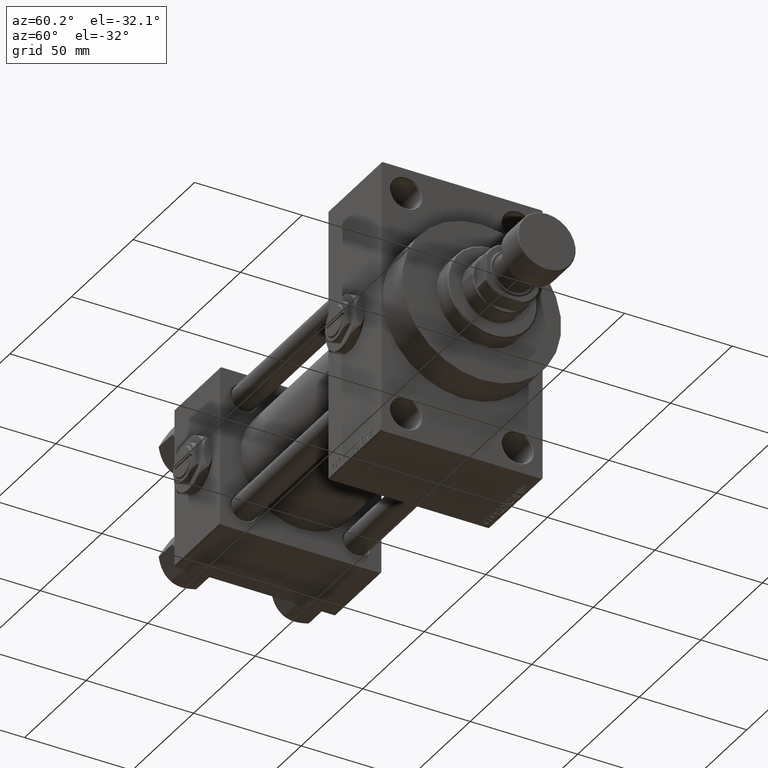
[diagram: clean part render]
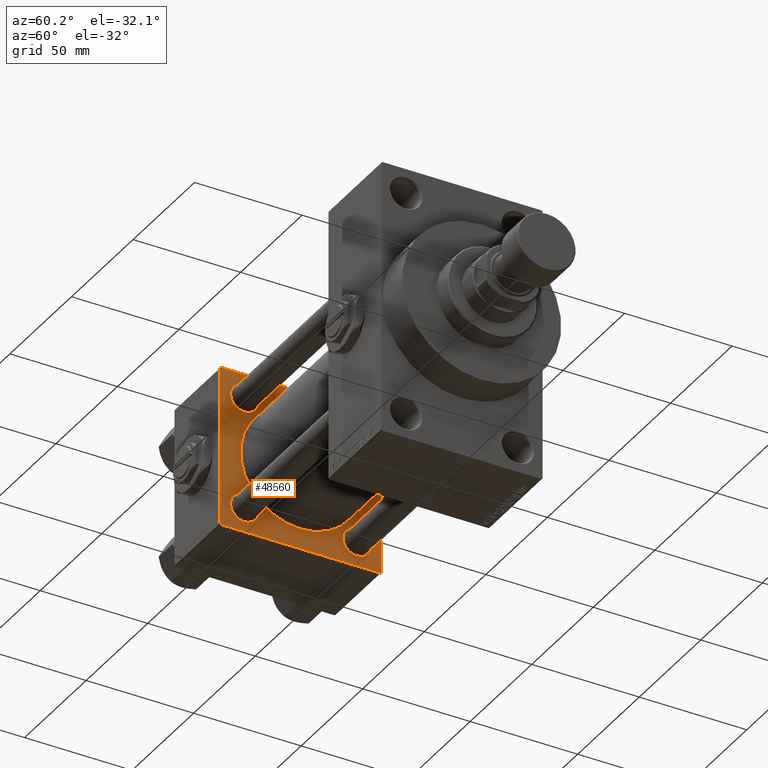
[diagram: same view with one face highlighted and labeled with its STEP entity id]
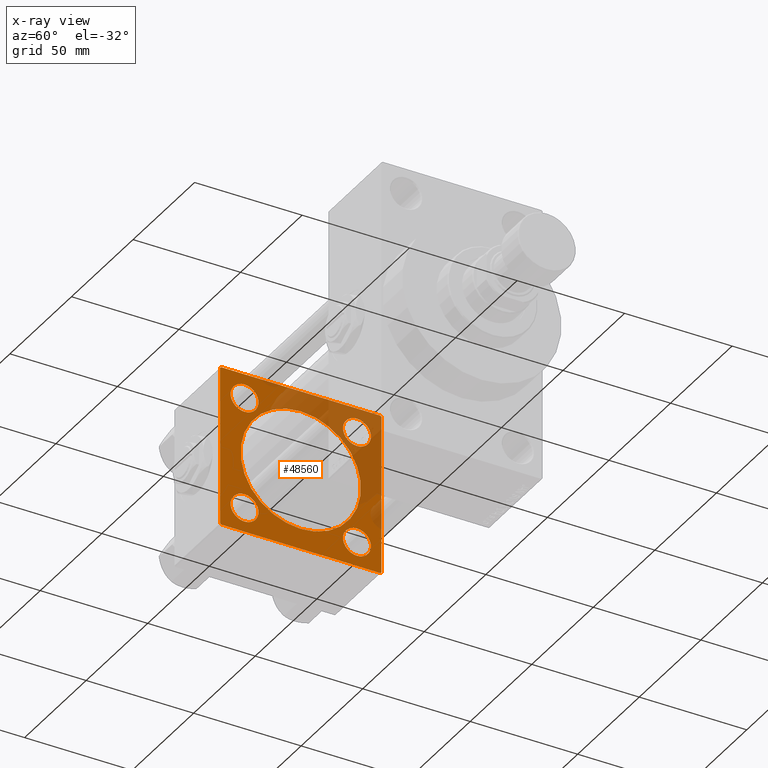
[diagram: x-ray of the same camera — body ghosted, the highlighted face saturated]
A machine part, auxiliary view. The second image highlights one B-rep face of the part: STEP entity #48560.
The next image is the same camera in x-ray: the body ghosted, the highlighted face saturated — about 33% of this face is hidden behind the body in this view.
In plain terms, the highlighted planar face has unit normal (-1, 0, 0).
Its self-contained STEP definition (entity closure, byte-faithful):
#48 = EDGE_CURVE ( 'NONE', #15306, #7305, #49686, .T. ) ;
#373 = CARTESIAN_POINT ( 'NONE',  ( 37.00000000000000711, 8.269258236473784371E-16, -28.00000000000000000 ) ) ;
#453 = EDGE_CURVE ( 'NONE', #25900, #24039, #15159, .T. ) ;
#1038 = CARTESIAN_POINT ( 'NONE',  ( 37.00000000000000000, -26.14999999999999147, -26.15000000000000924 ) ) ;
#2096 = DIRECTION ( 'NONE',  ( -1.000000000000000000, 0.000000000000000000, -0.000000000000000000 ) ) ;
#2340 = CARTESIAN_POINT ( 'NONE',  ( 37.00000000000000711, -2.602085213965210642E-15, 0.000000000000000000 ) ) ;
#2387 = ORIENTED_EDGE ( 'NONE', *, *, #22238, .T. ) ;
#2572 = DIRECTION ( 'NONE',  ( 0.000000000000000000, -1.000000000000000000, -9.251858538542971581E-17 ) ) ;
#2836 = LINE ( 'NONE', #18421, #5097 ) ;
#2849 = DIRECTION ( 'NONE',  ( 1.000000000000000000, -0.000000000000000000, 0.000000000000000000 ) ) ;
#2964 = DIRECTION ( 'NONE',  ( 0.000000000000000000, 0.000000000000000000, 1.000000000000000000 ) ) ;
#3082 = AXIS2_PLACEMENT_3D ( 'NONE', #2340, #2849, #29782 ) ;
#3333 = VECTOR ( 'NONE', #27521, 1000.000000000000114 ) ;
#4319 = CARTESIAN_POINT ( 'NONE',  ( 37.00000000000000000, 26.14999999999999858, -26.15000000000000213 ) ) ;
#4396 = EDGE_CURVE ( 'NONE', #24281, #28866, #39285, .T. ) ;
#5061 = DIRECTION ( 'NONE',  ( 0.000000000000000000, 9.251858538542971581E-17, -1.000000000000000000 ) ) ;
#5097 = VECTOR ( 'NONE', #18176, 1000.000000000000000 ) ;
#5340 = LINE ( 'NONE', #39810, #9867 ) ;
#6902 = VERTEX_POINT ( 'NONE', #11752 ) ;
#7305 = VERTEX_POINT ( 'NONE', #39599 ) ;
#7611 = ORIENTED_EDGE ( 'NONE', *, *, #13029, .F. ) ;
#7703 = EDGE_CURVE ( 'NONE', #34662, #24351, #37774, .T. ) ;
#8498 = AXIS2_PLACEMENT_3D ( 'NONE', #41335, #2096, #17441 ) ;
#8666 = ORIENTED_EDGE ( 'NONE', *, *, #7703, .T. ) ;
#8700 = EDGE_CURVE ( 'NONE', #20296, #21068, #42612, .T. ) ;
#9160 = ORIENTED_EDGE ( 'NONE', *, *, #30769, .T. ) ;
#9722 = ORIENTED_EDGE ( 'NONE', *, *, #10948, .T. ) ;
#9867 = VECTOR ( 'NONE', #25222, 1000.000000000000114 ) ;
#10307 = ORIENTED_EDGE ( 'NONE', *, *, #8700, .T. ) ;
#10717 = AXIS2_PLACEMENT_3D ( 'NONE', #38290, #19662, #31492 ) ;
#10948 = EDGE_CURVE ( 'NONE', #41208, #11150, #46881, .T. ) ;
#11150 = VERTEX_POINT ( 'NONE', #25738 ) ;
#11156 = FACE_OUTER_BOUND ( 'NONE', #48885, .T. ) ;
#11752 = CARTESIAN_POINT ( 'NONE',  ( 37.00000000000000000, -26.14999999999999147, 32.64999999999999147 ) ) ;
#11782 = ORIENTED_EDGE ( 'NONE', *, *, #40024, .F. ) ;
#12569 = ORIENTED_EDGE ( 'NONE', *, *, #22767, .T. ) ;
#12897 = AXIS2_PLACEMENT_3D ( 'NONE', #17637, #21663, #13862 ) ;
#13015 = VECTOR ( 'NONE', #2572, 1000.000000000000000 ) ;
#13029 = EDGE_CURVE ( 'NONE', #16529, #37383, #31271, .T. ) ;
#13154 = EDGE_CURVE ( 'NONE', #16529, #22715, #5340, .T. ) ;
#13699 = AXIS2_PLACEMENT_3D ( 'NONE', #1038, #27727, #16391 ) ;
#13862 = DIRECTION ( 'NONE',  ( 0.000000000000000000, 0.000000000000000000, 1.000000000000000000 ) ) ;
#14045 = CIRCLE ( 'NONE', #20470, 28.00000000000000000 ) ;
#14147 = CIRCLE ( 'NONE', #8498, 6.500000000000037303 ) ;
#14819 = CIRCLE ( 'NONE', #41362, 6.499999999999974243 ) ;
#15159 = CIRCLE ( 'NONE', #3082, 28.00000000000000000 ) ;
#15306 = VERTEX_POINT ( 'NONE', #37838 ) ;
#15559 = EDGE_CURVE ( 'NONE', #28866, #41208, #40561, .T. ) ;
#15673 = FACE_BOUND ( 'NONE', #27689, .T. ) ;
#16136 = CARTESIAN_POINT ( 'NONE',  ( 37.00000000000000000, 36.99999999999999289, 37.50000000000000000 ) ) ;
#16147 = DIRECTION ( 'NONE',  ( 0.000000000000000000, 0.000000000000000000, 1.000000000000000000 ) ) ;
#16391 = DIRECTION ( 'NONE',  ( 0.000000000000000000, 0.000000000000000000, 1.000000000000000000 ) ) ;
#16529 = VERTEX_POINT ( 'NONE', #42757 ) ;
#17300 = CARTESIAN_POINT ( 'NONE',  ( 37.00000000000000000, -37.50000000000000000, -37.00000000000003553 ) ) ;
#17441 = DIRECTION ( 'NONE',  ( 0.000000000000000000, 0.000000000000000000, 1.000000000000000000 ) ) ;
#17637 = CARTESIAN_POINT ( 'NONE',  ( 37.00000000000000000, -26.14999999999999147, 26.15000000000000924 ) ) ;
#17948 = CARTESIAN_POINT ( 'NONE',  ( 37.00000000000000000, 37.49999999999999289, 37.00000000000000000 ) ) ;
#18176 = DIRECTION ( 'NONE',  ( 0.000000000000000000, 0.000000000000000000, -1.000000000000000000 ) ) ;
#18421 = CARTESIAN_POINT ( 'NONE',  ( 37.00000000000000000, 37.49999999999999289, 37.50000000000000000 ) ) ;
#19447 = DIRECTION ( 'NONE',  ( -1.000000000000000000, 0.000000000000000000, -0.000000000000000000 ) ) ;
#19467 = CARTESIAN_POINT ( 'NONE',  ( 37.00000000000000000, 26.14999999999999858, 26.15000000000000213 ) ) ;
#19539 = CIRCLE ( 'NONE', #10717, 6.499999999999981348 ) ;
#19662 = DIRECTION ( 'NONE',  ( -1.000000000000000000, 0.000000000000000000, -0.000000000000000000 ) ) ;
#19933 = FACE_BOUND ( 'NONE', #21716, .T. ) ;
#20273 = VECTOR ( 'NONE', #31777, 1000.000000000000000 ) ;
#20296 = VERTEX_POINT ( 'NONE', #43833 ) ;
#20470 = AXIS2_PLACEMENT_3D ( 'NONE', #34090, #38103, #45641 ) ;
#20859 = LINE ( 'NONE', #36223, #33632 ) ;
#21068 = VERTEX_POINT ( 'NONE', #39083 ) ;
#21405 = ORIENTED_EDGE ( 'NONE', *, *, #48, .T. ) ;
#21663 = DIRECTION ( 'NONE',  ( -1.000000000000000000, 0.000000000000000000, -0.000000000000000000 ) ) ;
#21716 = EDGE_LOOP ( 'NONE', ( #24166, #41477 ) ) ;
#22117 = EDGE_LOOP ( 'NONE', ( #30238, #9160 ) ) ;
#22238 = EDGE_CURVE ( 'NONE', #7305, #15306, #25324, .T. ) ;
#22258 = ORIENTED_EDGE ( 'NONE', *, *, #46468, .T. ) ;
#22575 = CARTESIAN_POINT ( 'NONE',  ( 37.00000000000000000, 26.14999999999999858, 19.64999999999997016 ) ) ;
#22586 = CARTESIAN_POINT ( 'NONE',  ( 37.00000000000000000, -26.14999999999999147, -26.15000000000000924 ) ) ;
#22715 = VERTEX_POINT ( 'NONE', #25624 ) ;
#22767 = EDGE_CURVE ( 'NONE', #21068, #20296, #14819, .T. ) ;
#23481 = CARTESIAN_POINT ( 'NONE',  ( 37.00000000000000000, 37.49999999999999289, -37.50000000000000000 ) ) ;
#23502 = CARTESIAN_POINT ( 'NONE',  ( 37.00000000000000000, -37.50000000000000711, 36.99999999999999289 ) ) ;
#23839 = ORIENTED_EDGE ( 'NONE', *, *, #15559, .T. ) ;
#23988 = DIRECTION ( 'NONE',  ( -1.000000000000000000, 0.000000000000000000, -0.000000000000000000 ) ) ;
#24039 = VERTEX_POINT ( 'NONE', #373 ) ;
#24166 = ORIENTED_EDGE ( 'NONE', *, *, #453, .F. ) ;
#24281 = VERTEX_POINT ( 'NONE', #17948 ) ;
#24351 = VERTEX_POINT ( 'NONE', #36733 ) ;
#24492 = ORIENTED_EDGE ( 'NONE', *, *, #40243, .T. ) ;
#24888 = ORIENTED_EDGE ( 'NONE', *, *, #4396, .T. ) ;
#25222 = DIRECTION ( 'NONE',  ( -0.000000000000000000, 0.7071067811865474617, 0.7071067811865474617 ) ) ;
#25324 = CIRCLE ( 'NONE', #31743, 6.500000000000030198 ) ;
#25624 = CARTESIAN_POINT ( 'NONE',  ( 37.00000000000000000, 37.49999999999999289, -36.99999999999998579 ) ) ;
#25738 = CARTESIAN_POINT ( 'NONE',  ( 37.00000000000000000, -37.50000000000000711, 36.99999999999999289 ) ) ;
#25900 = VERTEX_POINT ( 'NONE', #47124 ) ;
#26122 = VERTEX_POINT ( 'NONE', #17300 ) ;
#26761 = DIRECTION ( 'NONE',  ( -0.000000000000000000, 0.000000000000000000, 1.000000000000000000 ) ) ;
#26836 = VECTOR ( 'NONE', #5061, 1000.000000000000000 ) ;
#27521 = DIRECTION ( 'NONE',  ( -0.000000000000000000, -0.7071067811865474617, -0.7071067811865474617 ) ) ;
#27689 = EDGE_LOOP ( 'NONE', ( #12569, #10307 ) ) ;
#27727 = DIRECTION ( 'NONE',  ( -1.000000000000000000, 0.000000000000000000, -0.000000000000000000 ) ) ;
#28231 = CARTESIAN_POINT ( 'NONE',  ( 37.00000000000000000, 36.99999999999999289, 37.50000000000000000 ) ) ;
#28866 = VERTEX_POINT ( 'NONE', #16136 ) ;
#29283 = CARTESIAN_POINT ( 'NONE',  ( 37.00000000000000000, -26.14999999999999147, 19.65000000000002700 ) ) ;
#29782 = DIRECTION ( 'NONE',  ( 0.000000000000000000, 0.000000000000000000, 1.000000000000000000 ) ) ;
#30238 = ORIENTED_EDGE ( 'NONE', *, *, #36123, .T. ) ;
#30423 = ORIENTED_EDGE ( 'NONE', *, *, #48948, .T. ) ;
#30696 = EDGE_LOOP ( 'NONE', ( #8666, #22258 ) ) ;
#30769 = EDGE_CURVE ( 'NONE', #6902, #37292, #49062, .T. ) ;
#31157 = CARTESIAN_POINT ( 'NONE',  ( 37.00000000000000000, -37.00000000000000711, 37.49999999999999289 ) ) ;
#31271 = LINE ( 'NONE', #23481, #20273 ) ;
#31492 = DIRECTION ( 'NONE',  ( 0.000000000000000000, 0.000000000000000000, 1.000000000000000000 ) ) ;
#31743 = AXIS2_PLACEMENT_3D ( 'NONE', #4319, #39036, #16147 ) ;
#31777 = DIRECTION ( 'NONE',  ( 0.000000000000000000, -1.000000000000000000, -9.251858538542972814E-17 ) ) ;
#32495 = LINE ( 'NONE', #40513, #26836 ) ;
#32621 = CARTESIAN_POINT ( 'NONE',  ( 37.00000000000000000, 26.14999999999999858, -26.15000000000000213 ) ) ;
#32689 = AXIS2_PLACEMENT_3D ( 'NONE', #39061, #19447, #26761 ) ;
#33632 = VECTOR ( 'NONE', #43017, 1000.000000000000000 ) ;
#34090 = CARTESIAN_POINT ( 'NONE',  ( 37.00000000000000711, -2.602085213965210642E-15, 0.000000000000000000 ) ) ;
#34662 = VERTEX_POINT ( 'NONE', #22575 ) ;
#36123 = EDGE_CURVE ( 'NONE', #37292, #6902, #19539, .T. ) ;
#36223 = CARTESIAN_POINT ( 'NONE',  ( 37.00000000000000000, -37.00000000000002132, -37.50000000000000711 ) ) ;
#36733 = CARTESIAN_POINT ( 'NONE',  ( 37.00000000000000000, 26.14999999999999858, 32.65000000000004121 ) ) ;
#37042 = CARTESIAN_POINT ( 'NONE',  ( 37.00000000000000000, 37.49999999999999289, 37.50000000000000000 ) ) ;
#37292 = VERTEX_POINT ( 'NONE', #29283 ) ;
#37383 = VERTEX_POINT ( 'NONE', #46773 ) ;
#37441 = DIRECTION ( 'NONE',  ( -1.000000000000000000, 0.000000000000000000, -0.000000000000000000 ) ) ;
#37774 = CIRCLE ( 'NONE', #38558, 6.500000000000037303 ) ;
#37838 = CARTESIAN_POINT ( 'NONE',  ( 37.00000000000000000, 26.14999999999999858, -19.64999999999997371 ) ) ;
#38103 = DIRECTION ( 'NONE',  ( 1.000000000000000000, -0.000000000000000000, 0.000000000000000000 ) ) ;
#38290 = CARTESIAN_POINT ( 'NONE',  ( 37.00000000000000000, -26.14999999999999147, 26.15000000000000924 ) ) ;
#38558 = AXIS2_PLACEMENT_3D ( 'NONE', #19467, #23988, #42599 ) ;
#39036 = DIRECTION ( 'NONE',  ( -1.000000000000000000, 0.000000000000000000, -0.000000000000000000 ) ) ;
#39061 = CARTESIAN_POINT ( 'NONE',  ( 37.00000000000000000, 0.000000000000000000, 0.000000000000000000 ) ) ;
#39083 = CARTESIAN_POINT ( 'NONE',  ( 37.00000000000000000, -26.14999999999999147, -32.64999999999998437 ) ) ;
#39285 = LINE ( 'NONE', #28231, #40846 ) ;
#39599 = CARTESIAN_POINT ( 'NONE',  ( 37.00000000000000000, 26.14999999999999858, -32.65000000000003411 ) ) ;
#39810 = CARTESIAN_POINT ( 'NONE',  ( 37.00000000000000000, 37.49999999999999289, -36.99999999999998579 ) ) ;
#40024 = EDGE_CURVE ( 'NONE', #24281, #22715, #2836, .T. ) ;
#40243 = EDGE_CURVE ( 'NONE', #11150, #26122, #32495, .T. ) ;
#40513 = CARTESIAN_POINT ( 'NONE',  ( 37.00000000000000000, -37.50000000000000711, 37.49999999999999289 ) ) ;
#40561 = LINE ( 'NONE', #37042, #13015 ) ;
#40846 = VECTOR ( 'NONE', #43558, 1000.000000000000114 ) ;
#40849 = AXIS2_PLACEMENT_3D ( 'NONE', #32621, #47198, #47943 ) ;
#41208 = VERTEX_POINT ( 'NONE', #31157 ) ;
#41335 = CARTESIAN_POINT ( 'NONE',  ( 37.00000000000000000, 26.14999999999999858, 26.15000000000000213 ) ) ;
#41362 = AXIS2_PLACEMENT_3D ( 'NONE', #22586, #37441, #2964 ) ;
#41477 = ORIENTED_EDGE ( 'NONE', *, *, #43313, .F. ) ;
#42599 = DIRECTION ( 'NONE',  ( 0.000000000000000000, 0.000000000000000000, 1.000000000000000000 ) ) ;
#42612 = CIRCLE ( 'NONE', #13699, 6.499999999999974243 ) ;
#42757 = CARTESIAN_POINT ( 'NONE',  ( 37.00000000000000000, 36.99999999999997868, -37.50000000000000000 ) ) ;
#43017 = DIRECTION ( 'NONE',  ( 0.000000000000000000, 0.7071067811865524577, -0.7071067811865426878 ) ) ;
#43059 = ORIENTED_EDGE ( 'NONE', *, *, #13154, .T. ) ;
#43313 = EDGE_CURVE ( 'NONE', #24039, #25900, #14045, .T. ) ;
#43558 = DIRECTION ( 'NONE',  ( 0.000000000000000000, -0.7071067811865474617, 0.7071067811865474617 ) ) ;
#43833 = CARTESIAN_POINT ( 'NONE',  ( 37.00000000000000000, -26.14999999999999147, -19.65000000000003411 ) ) ;
#45614 = FACE_BOUND ( 'NONE', #48854, .T. ) ;
#45641 = DIRECTION ( 'NONE',  ( 0.000000000000000000, 0.000000000000000000, 1.000000000000000000 ) ) ;
#45870 = PLANE ( 'NONE',  #32689 ) ;
#46468 = EDGE_CURVE ( 'NONE', #24351, #34662, #14147, .T. ) ;
#46606 = FACE_BOUND ( 'NONE', #22117, .T. ) ;
#46773 = CARTESIAN_POINT ( 'NONE',  ( 37.00000000000000000, -37.00000000000002132, -37.50000000000000711 ) ) ;
#46881 = LINE ( 'NONE', #23502, #3333 ) ;
#47124 = CARTESIAN_POINT ( 'NONE',  ( 37.00000000000000711, -2.602085213965210642E-15, 28.00000000000000000 ) ) ;
#47198 = DIRECTION ( 'NONE',  ( -1.000000000000000000, 0.000000000000000000, -0.000000000000000000 ) ) ;
#47943 = DIRECTION ( 'NONE',  ( 0.000000000000000000, 0.000000000000000000, 1.000000000000000000 ) ) ;
#48560 = ADVANCED_FACE ( 'NONE', ( #15673, #45614, #46606, #49632, #19933, #11156 ), #45870, .F. ) ;
#48854 = EDGE_LOOP ( 'NONE', ( #2387, #21405 ) ) ;
#48885 = EDGE_LOOP ( 'NONE', ( #7611, #43059, #11782, #24888, #23839, #9722, #24492, #30423 ) ) ;
#48948 = EDGE_CURVE ( 'NONE', #26122, #37383, #20859, .T. ) ;
#49062 = CIRCLE ( 'NONE', #12897, 6.499999999999981348 ) ;
#49632 = FACE_BOUND ( 'NONE', #30696, .T. ) ;
#49686 = CIRCLE ( 'NONE', #40849, 6.500000000000030198 ) ;